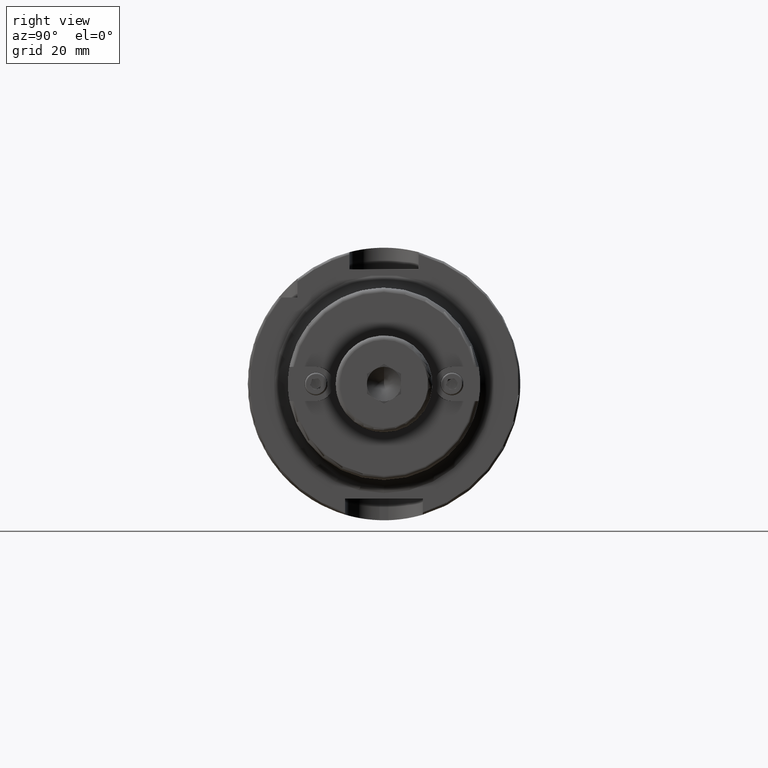
[diagram: clean part render]
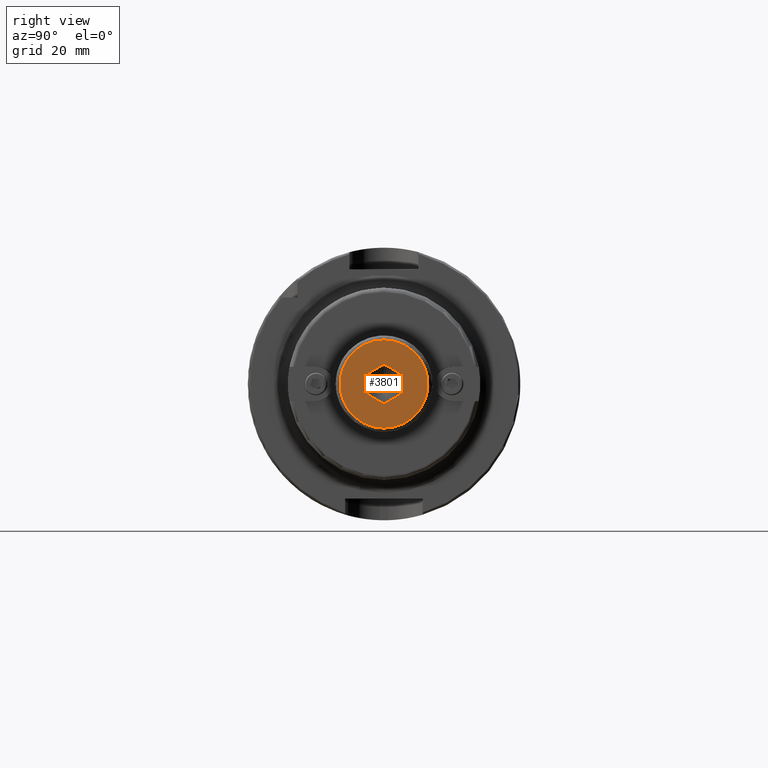
[diagram: same view with one face highlighted and labeled with its STEP entity id]
A machine part, right view. The second image highlights one B-rep face of the part: STEP entity #3801.
In plain terms, the highlighted planar face has unit normal (1, -0, 0).
Its self-contained STEP definition (entity closure, byte-faithful):
#699=FACE_BOUND('',#1206,.T.);
#767=PLANE('',#4386);
#998=FACE_OUTER_BOUND('',#1205,.T.);
#1205=EDGE_LOOP('',(#3497));
#1206=EDGE_LOOP('',(#3498,#3499,#3500,#3501,#3502,#3503));
#1387=LINE('',#7596,#1581);
#1390=LINE('',#7601,#1584);
#1392=LINE('',#7605,#1586);
#1394=LINE('',#7609,#1588);
#1396=LINE('',#7613,#1590);
#1398=LINE('',#7616,#1592);
#1581=VECTOR('',#5350,10.);
#1584=VECTOR('',#5355,10.);
#1586=VECTOR('',#5359,10.);
#1588=VECTOR('',#5363,10.);
#1590=VECTOR('',#5367,10.);
#1592=VECTOR('',#5371,10.);
#1831=CIRCLE('',#4385,10.2);
#2116=VERTEX_POINT('',#7594);
#2117=VERTEX_POINT('',#7595);
#2118=VERTEX_POINT('',#7600);
#2119=VERTEX_POINT('',#7604);
#2120=VERTEX_POINT('',#7608);
#2121=VERTEX_POINT('',#7612);
#2133=VERTEX_POINT('',#7652);
#2567=EDGE_CURVE('',#2116,#2117,#1387,.T.);
#2570=EDGE_CURVE('',#2118,#2116,#1390,.T.);
#2572=EDGE_CURVE('',#2119,#2118,#1392,.T.);
#2574=EDGE_CURVE('',#2120,#2119,#1394,.T.);
#2576=EDGE_CURVE('',#2121,#2120,#1396,.T.);
#2578=EDGE_CURVE('',#2117,#2121,#1398,.T.);
#2596=EDGE_CURVE('',#2133,#2133,#1831,.T.);
#3497=ORIENTED_EDGE('',*,*,#2596,.F.);
#3498=ORIENTED_EDGE('',*,*,#2567,.T.);
#3499=ORIENTED_EDGE('',*,*,#2578,.T.);
#3500=ORIENTED_EDGE('',*,*,#2576,.T.);
#3501=ORIENTED_EDGE('',*,*,#2574,.T.);
#3502=ORIENTED_EDGE('',*,*,#2572,.T.);
#3503=ORIENTED_EDGE('',*,*,#2570,.T.);
#3801=ADVANCED_FACE('',(#998,#699),#767,.T.);
#4385=AXIS2_PLACEMENT_3D('',#7654,#5419,#5420);
#4386=AXIS2_PLACEMENT_3D('',#7655,#5421,#5422);
#5350=DIRECTION('',(0.,1.33244658584058E-15,1.));
#5355=DIRECTION('',(0.,0.866025403784439,0.499999999999999));
#5359=DIRECTION('',(0.,0.866025403784438,-0.500000000000001));
#5363=DIRECTION('',(0.,-7.26789046822135E-16,-1.));
#5367=DIRECTION('',(0.,-0.866025403784439,-0.5));
#5371=DIRECTION('',(0.,-0.866025403784438,0.500000000000001));
#5419=DIRECTION('center_axis',(1.,0.,0.));
#5420=DIRECTION('ref_axis',(0.,-1.,1.83697019872103E-16));
#5421=DIRECTION('center_axis',(-1.,0.,0.));
#5422=DIRECTION('ref_axis',(0.,0.,1.));
#7594=CARTESIAN_POINT('',(0.,3.96874999999999,-2.29135888084633));
#7595=CARTESIAN_POINT('',(0.,3.96875,2.29135888084632));
#7596=CARTESIAN_POINT('',(0.,3.96875,-1.14567944042316));
#7600=CARTESIAN_POINT('',(0.,-7.44513443924861E-15,-4.58271776169265));
#7601=CARTESIAN_POINT('',(0.,5.1921875,-1.58500691088465));
#7604=CARTESIAN_POINT('',(0.,-3.96875,-2.29135888084632));
#7605=CARTESIAN_POINT('',(0.,1.22343749999999,-5.28906973165434));
#7608=CARTESIAN_POINT('',(0.,-3.96875,2.29135888084633));
#7609=CARTESIAN_POINT('',(0.,-3.96875,1.14567944042317));
#7612=CARTESIAN_POINT('',(0.,-6.03982489283776E-16,4.58271776169266));
#7613=CARTESIAN_POINT('',(0.,3.2078125,6.4347491720775));
#7616=CARTESIAN_POINT('',(0.,7.1765625,0.439327470461475));
#7652=CARTESIAN_POINT('',(0.,-1.2491397351303E-15,10.2));
#7654=CARTESIAN_POINT('Origin',(0.,0.,0.));
#7655=CARTESIAN_POINT('Origin',(0.,11.2,0.));